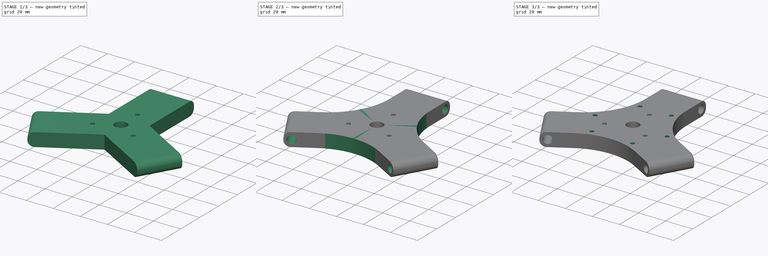
[diagram: build sequence overview — one tinted view per stage of 3, left to right]
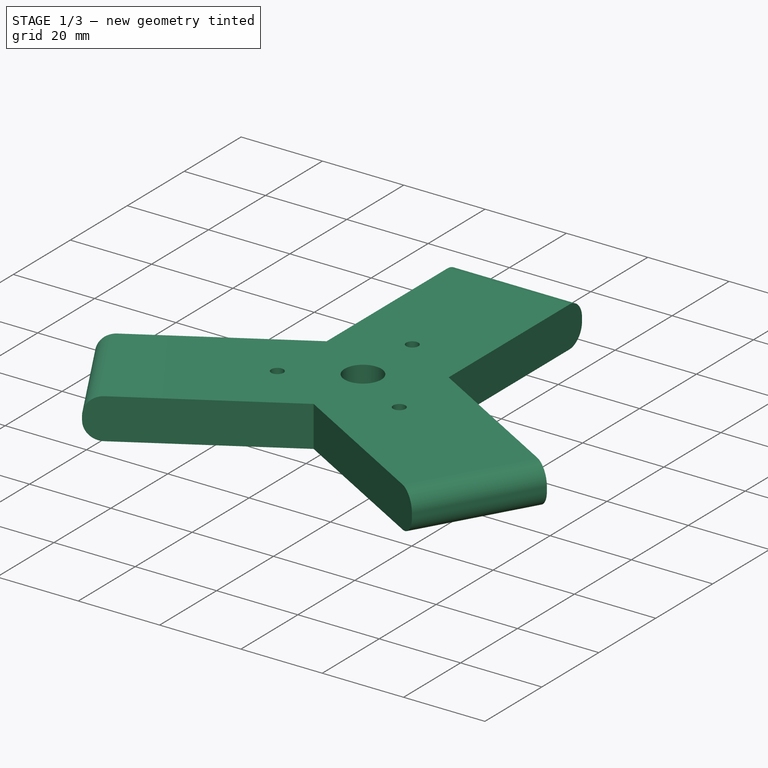
[diagram: stage 1 of 3 — iso view after this stage's code; geometry added in this stage tinted green]
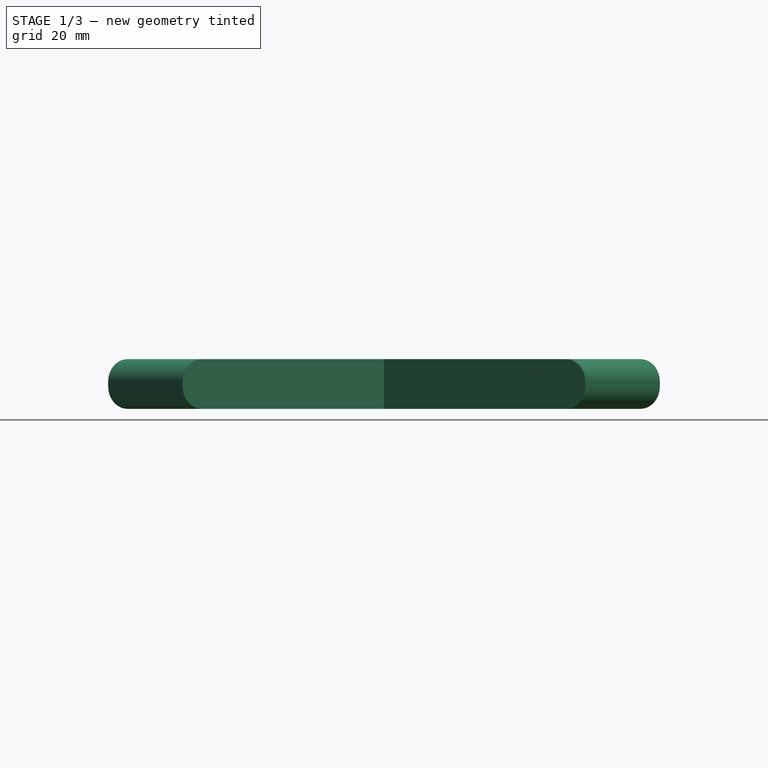
[diagram: stage 1 of 3 — front view after this stage's code; geometry added in this stage tinted green]
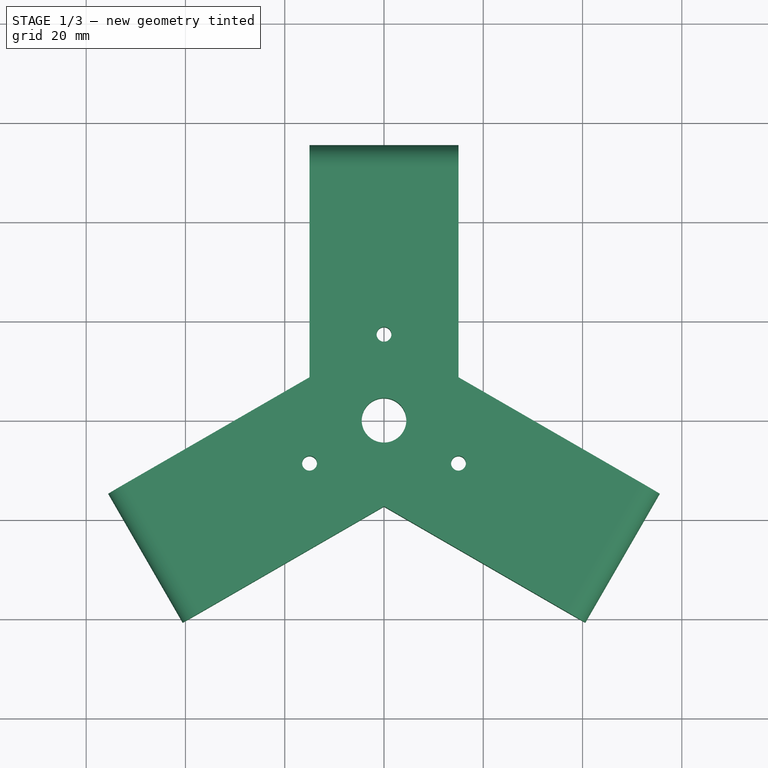
[diagram: stage 1 of 3 — top view after this stage's code; geometry added in this stage tinted green]
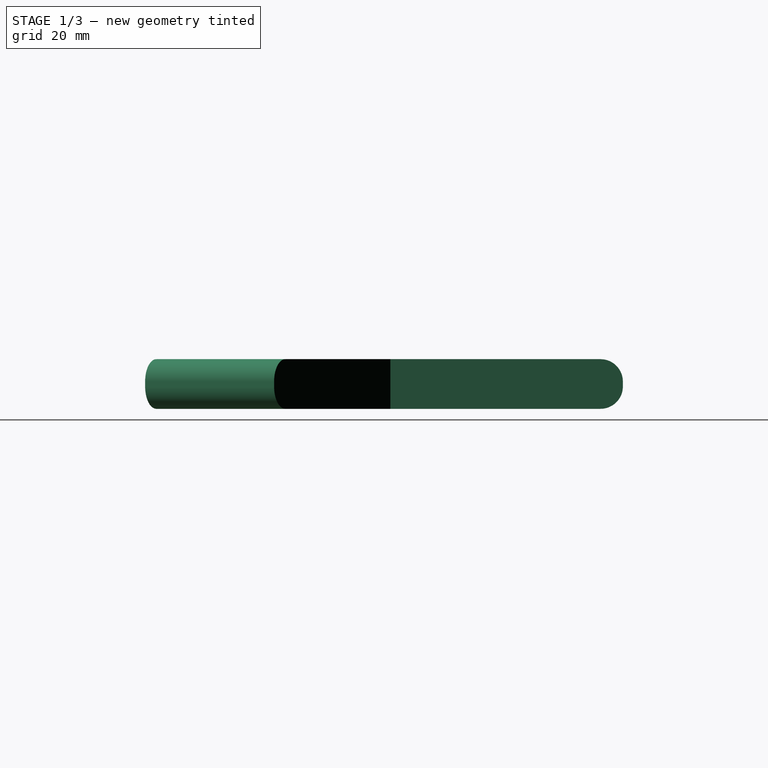
[diagram: stage 1 of 3 — right view after this stage's code; geometry added in this stage tinted green]
FCSTD DOCUMENT  (FreeCAD 1.0R38641 +468 (Git))
Label: 02toolhead
License: All rights reserved
LicenseURL: https://en.wikipedia.org/wiki/All_rights_reserved
objects: Sketcher::SketchObject×5, PartDesign::Fillet×2, PartDesign::Pocket×2, PartDesign::PolarPattern×2, PartDesign::Pad×1, PartDesign::Body×1
note: 30 computed .brp shape members not serialized (recipe doc carries the construction recipe); baked Part::Feature solids carry a one-line shape summary decoded from their .brp

FEATURE [Sketcher::SketchObject] Sketch021
  ArcFitTolerance = 1e-06
  AttachmentSupport = -> [XY_Plane017]
  FullyConstrained = true
  MakeInternals = false
  MapMode = 5
  expr: Constraints[19] = 9
  sketch-geometry (22):
    g0: Circle [constr] CenterX=0 CenterY=0 CenterZ=0 NormalX=0 NormalY=0 NormalZ=1 AngleXU=0 Radius=55.5
    g1: LineSegment [constr] StartX=-96.1288 StartY=55.5 StartZ=0 EndX=1.42e-14 EndY=-111 EndZ=0
    g2: LineSegment [constr] StartX=1.42e-14 StartY=-111 StartZ=0 EndX=96.1288 EndY=55.5 EndZ=0
    g3: LineSegment [constr] StartX=96.1288 StartY=55.5 StartZ=0 EndX=-96.1288 EndY=55.5 EndZ=0
    g4: Circle [constr] CenterX=0 CenterY=0 CenterZ=0 NormalX=0 NormalY=0 NormalZ=1 AngleXU=0 Radius=111
    g5: LineSegment StartX=-40.5644 StartY=-40.7403 StartZ=0 EndX=-55.5644 EndY=-14.7597 EndZ=0
    g6: LineSegment StartX=-15 StartY=55.5 StartZ=0 EndX=15 EndY=55.5 EndZ=0
    g7: Circle CenterX=0 CenterY=0 CenterZ=0 NormalX=0 NormalY=0 NormalZ=1 AngleXU=0 Radius=4.5
    g8: LineSegment StartX=40.5644 StartY=-40.7404 StartZ=0 EndX=55.5644 EndY=-14.7597 EndZ=0
    g9: LineSegment StartX=15 StartY=55.5 StartZ=0 EndX=15 EndY=8.66023 EndZ=0
    g10: LineSegment StartX=15 StartY=8.66023 StartZ=0 EndX=55.5644 EndY=-14.7597 EndZ=0
    g11: LineSegment StartX=-40.5644 StartY=-40.7403 StartZ=0 EndX=0 EndY=-17.3205 EndZ=0
    g12: LineSegment StartX=0 StartY=-17.3205 StartZ=0 EndX=40.5644 EndY=-40.7404 EndZ=0
    g13: LineSegment StartX=-55.5644 StartY=-14.7597 StartZ=0 EndX=-15 EndY=8.66023 EndZ=0
    g14: LineSegment StartX=-15 StartY=8.66023 StartZ=0 EndX=-15 EndY=55.5 EndZ=0
    g15: Circle CenterX=0 CenterY=17.3205 CenterZ=0 NormalX=0 NormalY=0 NormalZ=1 AngleXU=0 Radius=1.5
    g16: Circle CenterX=15 CenterY=-8.66025 CenterZ=0 NormalX=0 NormalY=0 NormalZ=1 AngleXU=0 Radius=1.5
    g17: Circle CenterX=-15 CenterY=-8.66025 CenterZ=0 NormalX=0 NormalY=0 NormalZ=1 AngleXU=0 Radius=1.5
    g18: LineSegment [constr] StartX=0 StartY=17.3205 StartZ=0 EndX=-15 EndY=-8.66025 EndZ=0
    g19: LineSegment [constr] StartX=-15 StartY=-8.66025 StartZ=0 EndX=15 EndY=-8.66025 EndZ=0
    g20: LineSegment [constr] StartX=15 StartY=-8.66025 StartZ=0 EndX=0 EndY=17.3205 EndZ=0
    g21: Circle [constr] CenterX=0 CenterY=0 CenterZ=0 NormalX=0 NormalY=0 NormalZ=1 AngleXU=0 Radius=17.3205
  constraints (60):
    c: Coincident(g0,g-1)
    c: Coincident(g1,g2)
    c: Coincident(g2,g3)
    c: Coincident(g3,g1)
    c: Equal(g1,g2)
    c: Equal(g1,g3)
    c: PointOnObject(g1,g4)
    c: PointOnObject(g2,g4)
    c: PointOnObject(g3,g4)
    c: Tangent(g3,g0)
    c: PointOnObject(g5,g1)
    c: PointOnObject(g6,g3)
    c: PointOnObject(g8,g2)
    c: PointOnObject(g6,g3)
    c: PointOnObject(g5,g1)
    c: PointOnObject(g8,g2)
    c: Horizontal(g3)
    c: Coincident(g0,g4)
    c: Coincident(g7,g0)
    c: Diameter(g7) = 9
    c: Distance(g8,g8) = 30
    c: Coincident(g6,g9)
    c: Coincident(g9,g10)
    c: Coincident(g10,g8)
    c: Coincident(g5,g11)
    c: Coincident(g11,g12)
    c: Coincident(g12,g8)
    c: Coincident(g5,g13)
    c: Coincident(g13,g14)
    c: Coincident(g14,g6)
    c: Equal(g14,g13)
    c: Equal(g13,g11)
    c: Equal(g11,g12)
    c: Equal(g9,g10)
    c: Equal(g10,g12)
    c: Perpendicular(g8,g10)
    c: Perpendicular(g6,g9)
    c: Perpendicular(g5,g13)
    c: Perpendicular(g6,g14)
    c: Perpendicular(g11,g5)
    c: PointOnObject(g15,g-2)
    c: Coincident(g18,g19)
    c: Coincident(g19,g20)
    c: Coincident(g20,g18)
    c: Equal(g18,g19)
    c: Equal(g18,g20)
    c: PointOnObject(g18,g21)
    c: PointOnObject(g19,g21)
    c: PointOnObject(g20,g21)
    c: Coincident(g21,g0)
    c: Coincident(g20,g15)
    c: Coincident(g16,g19)
    c: Coincident(g17,g18)
    c: Equal(g17,g16)
    c: Equal(g16,g15)
    c: Diameter(g15) = 3
    c: PointOnObject(g11,g-2)
    c: DistanceX(g3,g3) = 192.258
    c: Distance(g20,g20) = 30
    c: Diameter(g0) = 111
FEATURE [PartDesign::Pad] Pad011
  Direction = (0,0,1)
  Length = 10
  Length2 = 10
  Profile = -> Sketch021
  ReferenceAxis = -> Sketch021 [N_Axis]
  Refine = true
  Suppressed = false
  Type = 0
FEATURE [PartDesign::Fillet] Fillet
  Base = -> Pad011 [Edge15,Edge24,Edge6,Edge25,Edge7,Edge16]
  BaseFeature = -> Pad011
  Radius = 4.5
  Refine = true
  SupportTransform = false
  Suppressed = false
  UseAllEdges = false
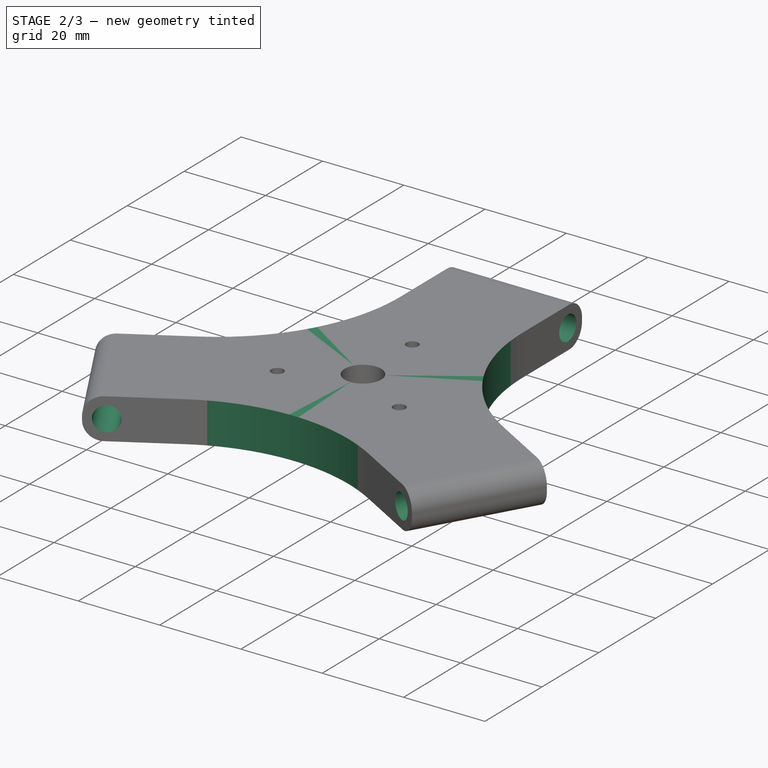
[diagram: stage 2 of 3 — iso view after this stage's code; geometry added in this stage tinted green]
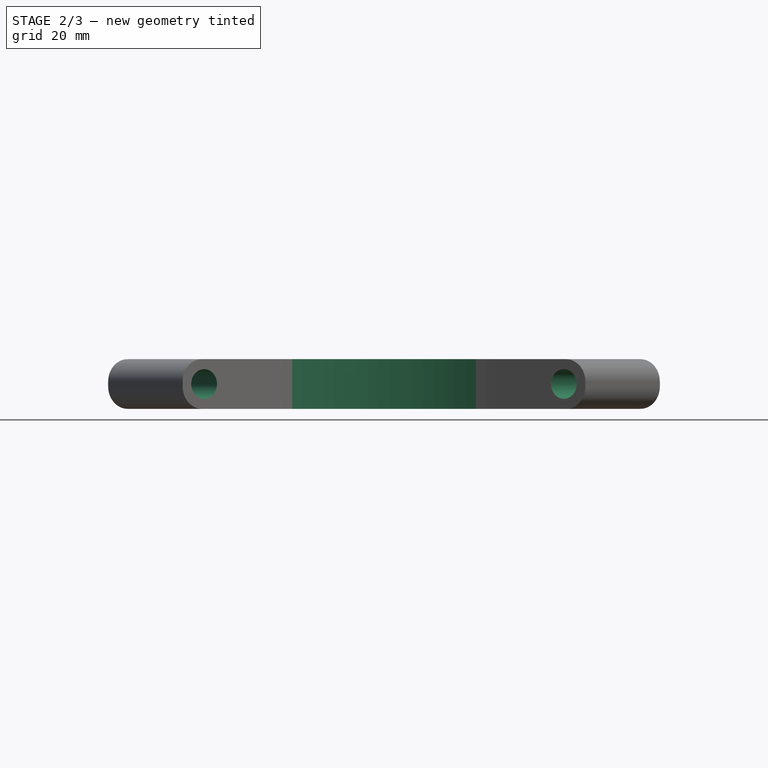
[diagram: stage 2 of 3 — front view after this stage's code; geometry added in this stage tinted green]
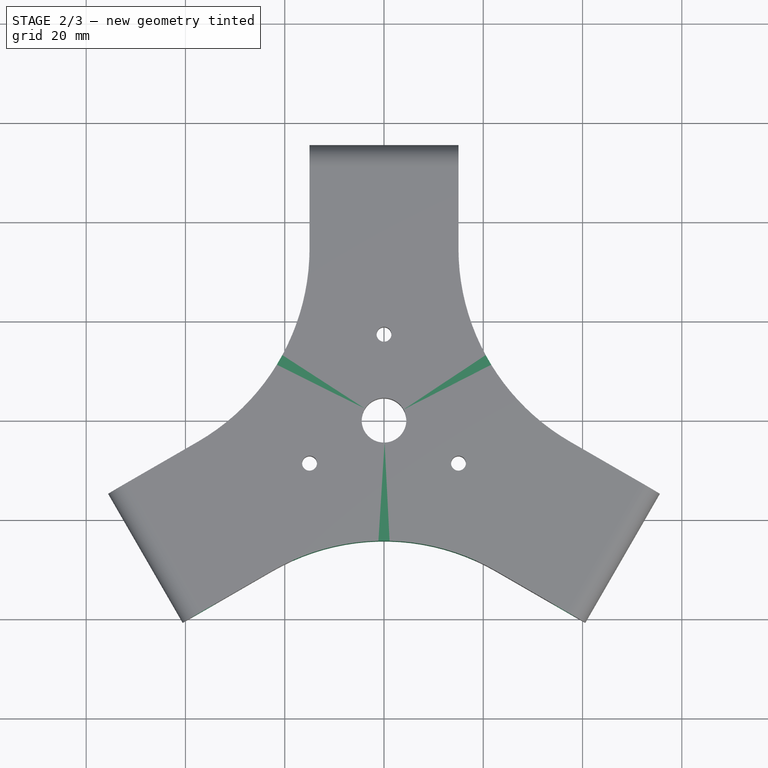
[diagram: stage 2 of 3 — top view after this stage's code; geometry added in this stage tinted green]
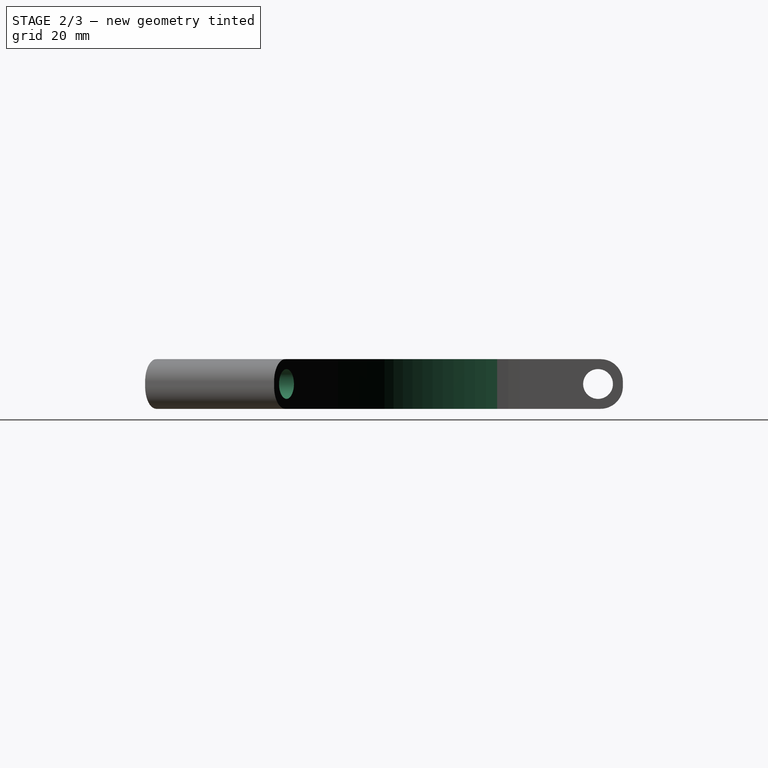
[diagram: stage 2 of 3 — right view after this stage's code; geometry added in this stage tinted green]
FEATURE [Sketcher::SketchObject] Sketch022
  ArcFitTolerance = 1e-06
  AttachmentSupport = -> [YZ_Plane017]
  ExternalGeometry = -> [Fillet]
  FullyConstrained = false
  MakeInternals = false
  MapMode = 5
  Placement = pos=(0,0,0) rot=(0.57735,0.57735,0.57735;2.0944rad)
  sketch-geometry (2):
    g0: Circle CenterX=50.5 CenterY=5 CenterZ=0 NormalX=0 NormalY=0 NormalZ=1 AngleXU=0 Radius=3
    g1: LineSegment [constr] StartX=29.5949 StartY=5 StartZ=0 EndX=55.5 EndY=5 EndZ=0
  constraints (5):
    c: Diameter(g0) = 6
    c: Symmetric(g-3,g-4,g1)
    c: PointOnObject(g0,g1)
    c: Vertical(g1,g-4)
    c: DistanceX(g0,g1) = 5
FEATURE [PartDesign::Pocket] Pocket004
  BaseFeature = -> Fillet
  Direction = (-1,0,0)
  Length = 5
  Length2 = 5
  Midplane = true
  Profile = -> Sketch022
  ReferenceAxis = -> Sketch022 [N_Axis]
  Refine = true
  Suppressed = false
  Type = 1
FEATURE [PartDesign::PolarPattern] PolarPattern001
  Angle = 360
  Axis = -> Sketch022 [V_Axis]
  BaseFeature = -> Pocket004
  Mode = 0
  Occurrences = 3
  Offset = 120
  Originals = -> [Pocket004]
  Refine = true
  Suppressed = false
  TransformMode = 0
FEATURE [PartDesign::Fillet] Fillet001
  Base = -> PolarPattern001 [Edge52,Edge43,Edge6]
  BaseFeature = -> PolarPattern001
  Radius = 45
  Refine = true
  SupportTransform = false
  Suppressed = false
  UseAllEdges = false
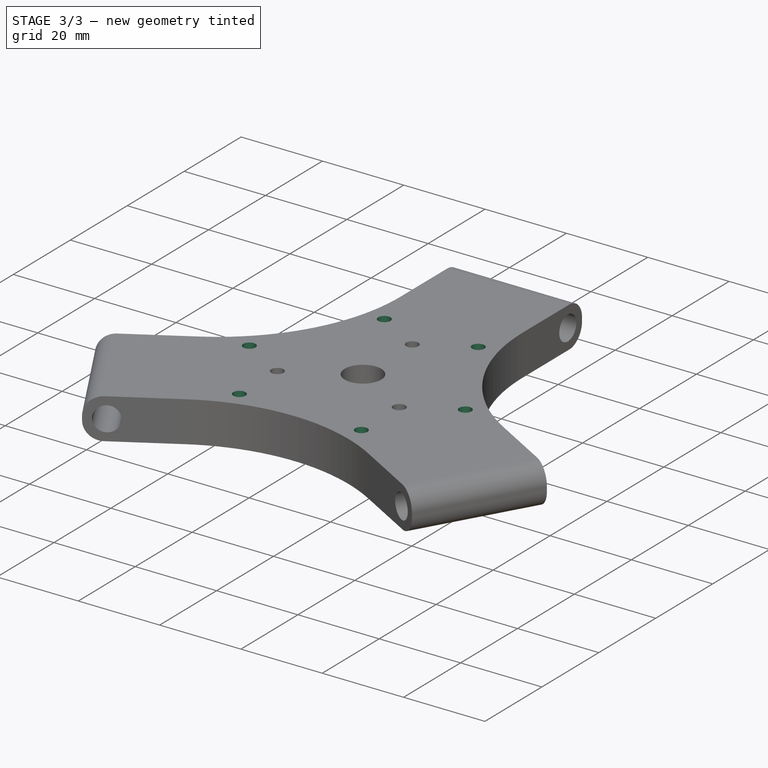
[diagram: stage 3 of 3 — iso view after this stage's code; geometry added in this stage tinted green]
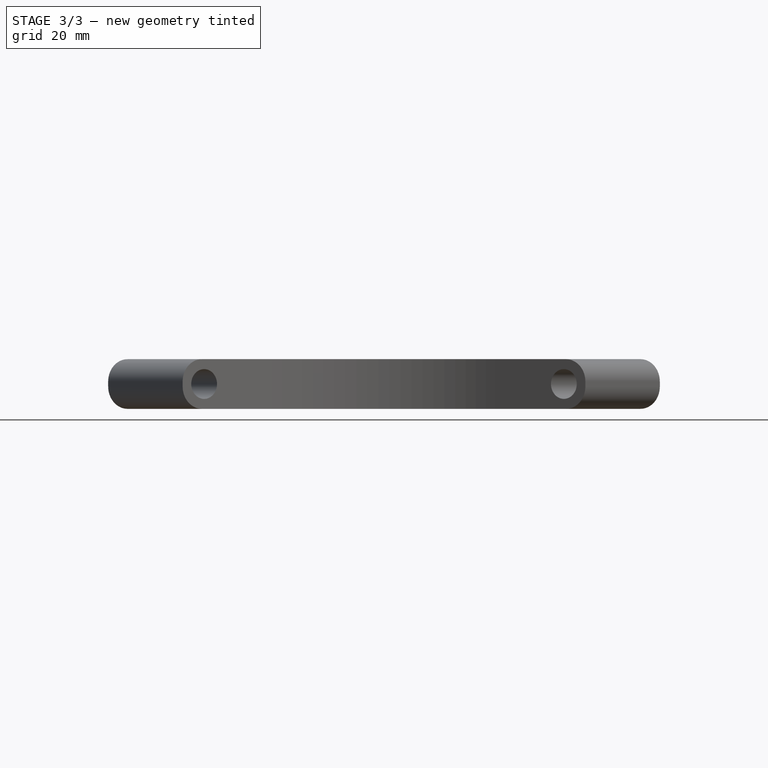
[diagram: stage 3 of 3 — front view after this stage's code; geometry added in this stage tinted green]
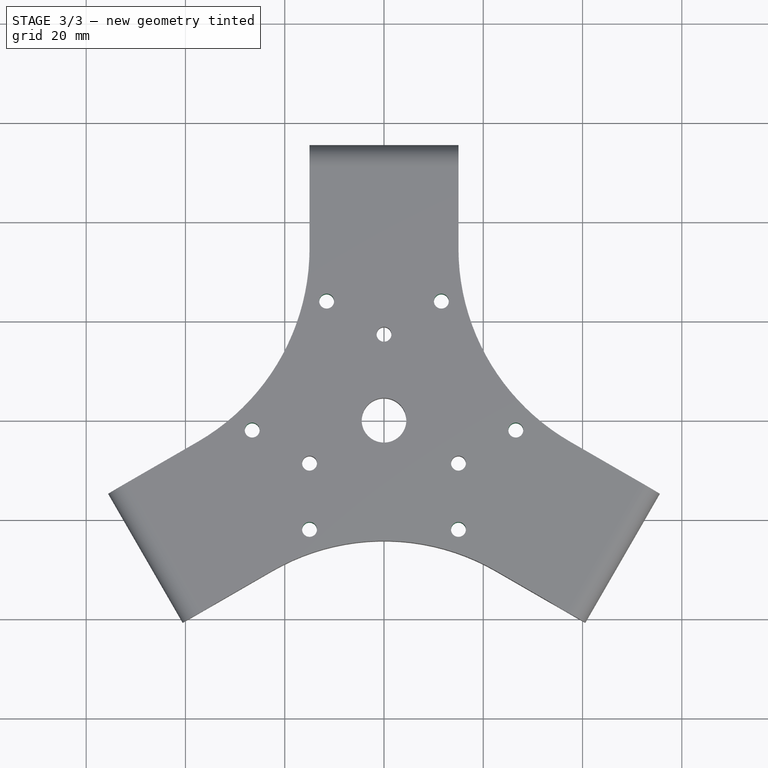
[diagram: stage 3 of 3 — top view after this stage's code; geometry added in this stage tinted green]
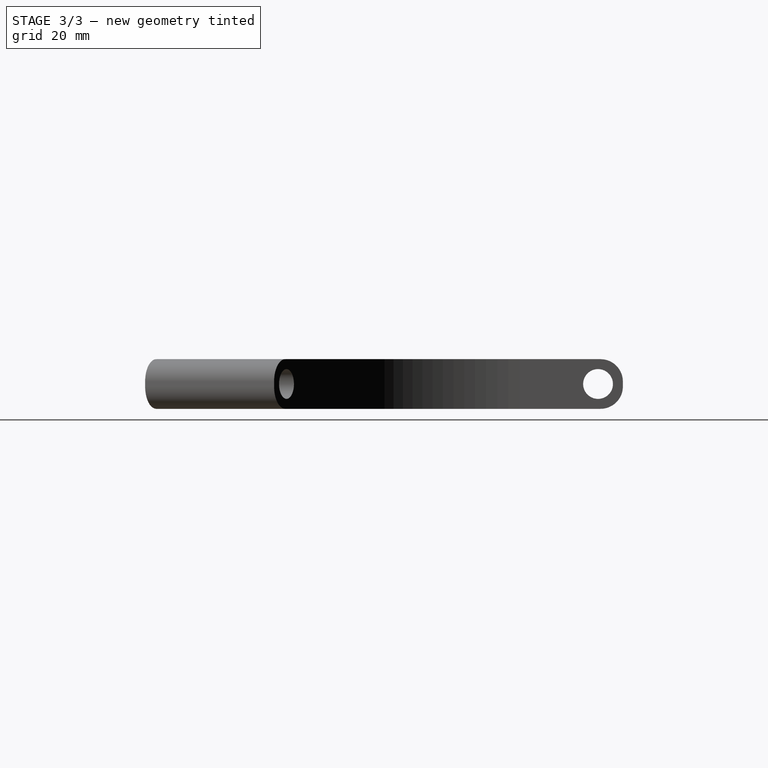
[diagram: stage 3 of 3 — right view after this stage's code; geometry added in this stage tinted green]
FEATURE [Sketcher::SketchObject] Sketch025
  ArcFitTolerance = 1e-06
  AttachmentSupport = -> [Fillet001]
  ExternalGeometry = -> [Fillet001]
  FullyConstrained = false
  MakeInternals = false
  MapMode = 5
  Placement = pos=(0,0,10) rot=(0,0,1;0rad)
  sketch-geometry (5):
    g0: LineSegment [constr] StartX=-15 StartY=-8.66025 StartZ=0 EndX=47.386 EndY=27.3583 EndZ=0
    g1: LineSegment [constr] StartX=11.5526 StartY=23.9904 StartZ=0 EndX=26.5526 EndY=-1.99038 EndZ=0
    g2: GeomPoint [constr] X=19.0526 Y=11 Z=0
    g3: Circle CenterX=11.5526 CenterY=23.9904 CenterZ=0 NormalX=0 NormalY=0 NormalZ=1 AngleXU=0 Radius=1.5
    g4: Circle CenterX=26.5526 CenterY=-1.99038 CenterZ=0 NormalX=0 NormalY=0 NormalZ=1 AngleXU=0 Radius=1.5
  constraints (11):
    c: Coincident(g0,g-4)
    c: PointOnObject(g-1,g0)
    c: PointOnObject(g2,g0)
    c: Symmetric(g1,g1,g2)
    c: Distance(g-1,g2) = 22
    c: Perpendicular(g0,g1)
    c: Coincident(g3,g1)
    c: Coincident(g4,g1)
    c: Distance(g1,g1) = 30
    c: Equal(g3,g4)
    c: Diameter(g4) = 3
FEATURE [PartDesign::Pocket] Pocket005
  BaseFeature = -> Fillet001
  Direction = (0,0,-1)
  Length = 5
  Length2 = 5
  Profile = -> Sketch025
  ReferenceAxis = -> Sketch025 [N_Axis]
  Refine = true
  Suppressed = false
  Type = 1
FEATURE [PartDesign::PolarPattern] PolarPattern002
  Angle = 360
  Axis = -> Sketch025 [N_Axis]
  BaseFeature = -> Pocket005
  Mode = 0
  Occurrences = 3
  Offset = 120
  Originals = -> [Pocket005]
  Refine = true
  Suppressed = false
  TransformMode = 0
FEATURE [Sketcher::SketchObject] Sketch
  ArcFitTolerance = 1e-06
  AttachmentSupport = -> [PolarPattern002]
  FullyConstrained = false
  MakeInternals = false
  MapMode = 5
  Placement = pos=(0,0,10) rot=(0,0,1;0rad)
  sketch-geometry (5):
    g0: LineSegment StartX=-24.5098 StartY=-4.90562 StartZ=0 EndX=-24.5098 EndY=-52.9056 EndZ=0
    g1: LineSegment StartX=-24.5098 StartY=-52.9056 StartZ=0 EndX=23.4902 EndY=-52.9056 EndZ=0
    g2: LineSegment StartX=23.4902 StartY=-52.9056 StartZ=0 EndX=23.4902 EndY=-4.90562 EndZ=0
    g3: LineSegment StartX=23.4902 StartY=-4.90562 StartZ=0 EndX=-24.5098 EndY=-4.90562 EndZ=0
    g4: GeomPoint [constr] X=-0.509789 Y=-28.9056 Z=0
  constraints (11):
    c: Coincident(g0,g1)
    c: Coincident(g1,g2)
    c: Coincident(g2,g3)
    c: Coincident(g3,g0)
    c: Vertical(g0)
    c: Vertical(g2)
    c: Horizontal(g1)
    c: Horizontal(g3)
    c: Symmetric(g2,g0,g4)
    c: Equal(g3,g2)
    c: DistanceY(g2,g2) = 48
FEATURE [Sketcher::SketchObject] Sketch026
  ArcFitTolerance = 1e-06
  AttachmentSupport = -> [YZ_Plane017]
  ExternalGeometry = -> [PolarPattern002]
  FullyConstrained = true
  MakeInternals = false
  MapMode = 5
  Placement = pos=(0,0,0) rot=(0.57735,0.57735,0.57735;2.0944rad)
  constraints (1):
    c: Distance(g-3,g-2) = 50.5
FEATURE [PartDesign::Body] Body009  label="tool001"
  AllowCompound = false
  Group = -> [Sketch021,Pad011,Fillet,Sketch022,Pocket004,PolarPattern001,Fillet001,Sketch025,Pocket005,PolarPattern002,Sketch,Sketch026]
  Origin = -> Origin039
  Tip = -> PolarPattern002
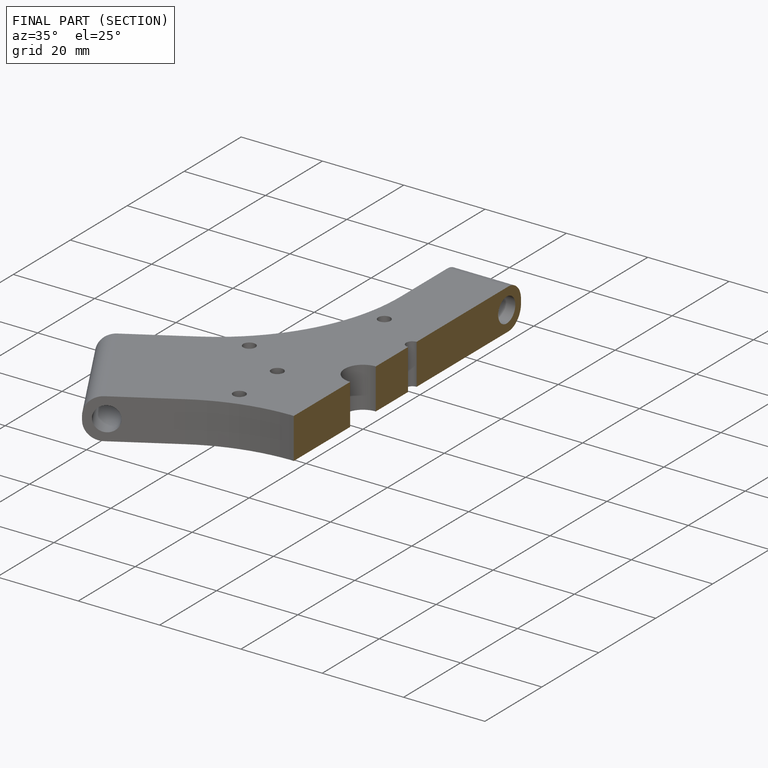
[diagram: finished part — half-section view (interior)]
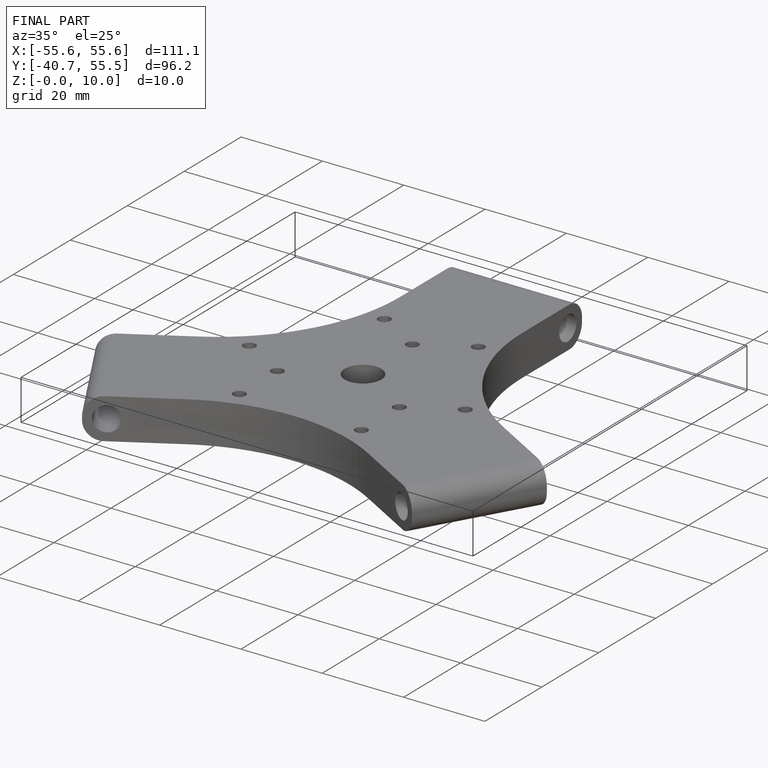
[diagram: finished part — iso view with bounding-box wireframe]
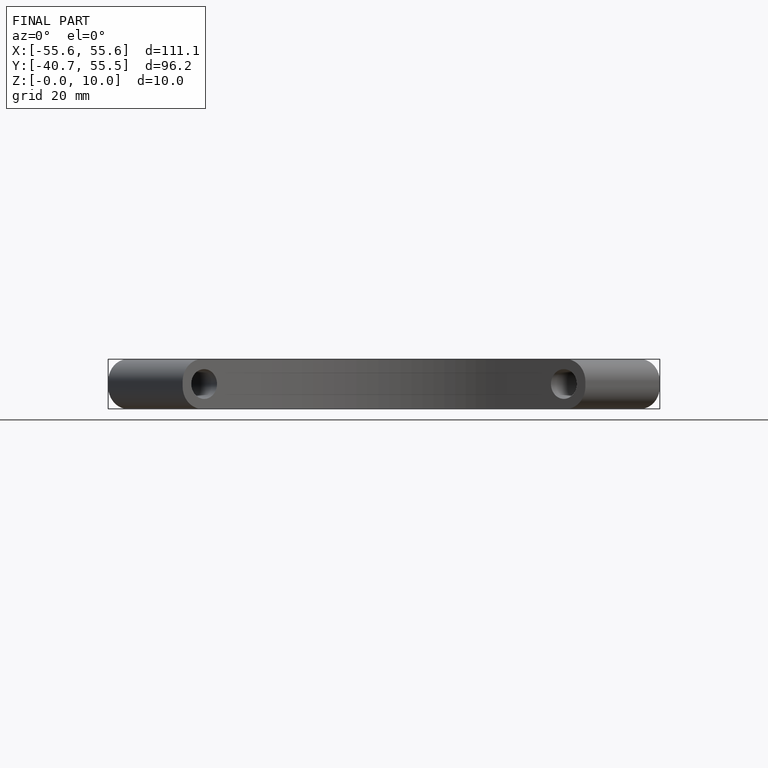
[diagram: finished part — front view with bounding-box wireframe]
